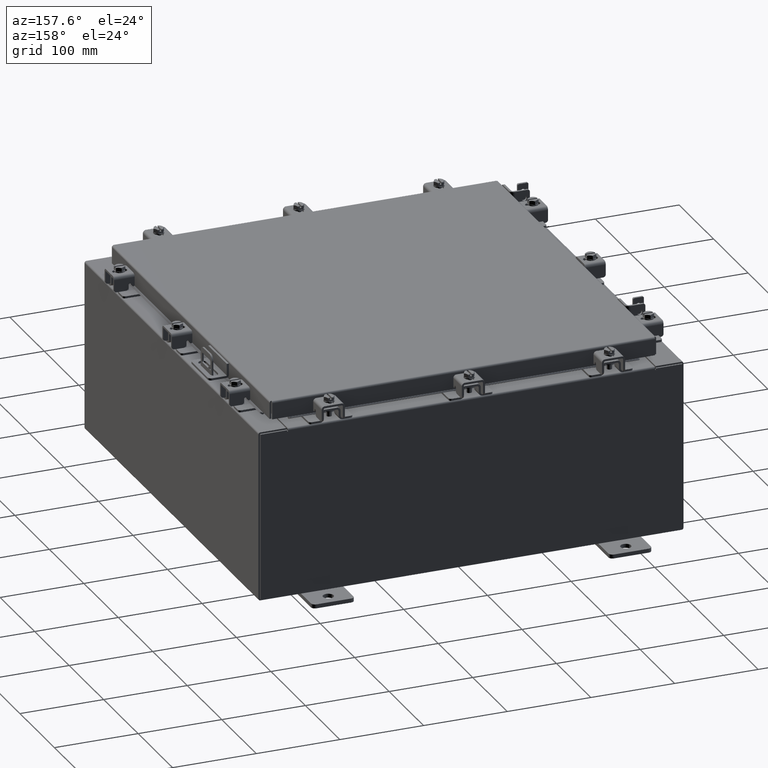
[diagram: clean part render]
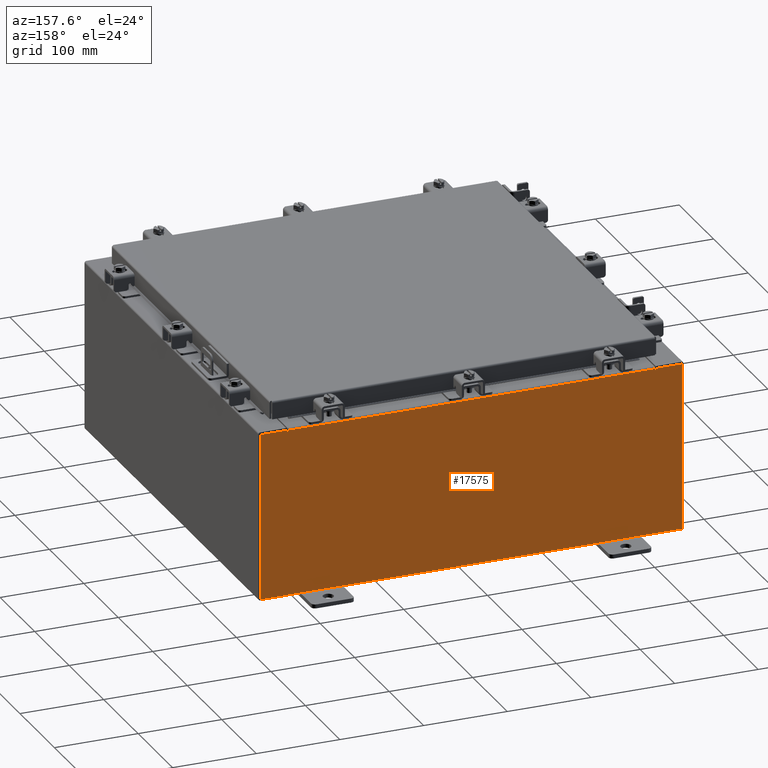
[diagram: same view with one face highlighted and labeled with its STEP entity id]
A machine part, auxiliary view. The second image highlights one B-rep face of the part: STEP entity #17575.
In plain terms, the highlighted planar face has unit normal (0, -1, 0).
Its self-contained STEP definition (entity closure, byte-faithful):
#50 = EDGE_CURVE ( 'NONE', #14432, #22506, #18340, .T. ) ;
#251 = FACE_OUTER_BOUND ( 'NONE', #4252, .T. ) ;
#548 = AXIS2_PLACEMENT_3D ( 'NONE', #9248, #4067, #16262 ) ;
#1050 = LINE ( 'NONE', #3271, #13907 ) ;
#1285 = DIRECTION ( 'NONE',  ( 1.000000000000000000, 0.0000000000000000000, 0.0000000000000000000 ) ) ;
#1331 = ORIENTED_EDGE ( 'NONE', *, *, #11438, .F. ) ;
#1709 = ORIENTED_EDGE ( 'NONE', *, *, #6913, .T. ) ;
#2180 = CIRCLE ( 'NONE', #19082, 0.01867500000000003900 ) ;
#2260 = CARTESIAN_POINT ( 'NONE',  ( -9.925300000000000000, 0.0000000000000000000, 3.925299999999999600 ) ) ;
#2336 = CARTESIAN_POINT ( 'NONE',  ( -8.674549999999996400, 0.0000000000000000000, 3.925299999999999600 ) ) ;
#2378 = ORIENTED_EDGE ( 'NONE', *, *, #5160, .F. ) ;
#2814 = CARTESIAN_POINT ( 'NONE',  ( -8.637199999999996400, 1.024442997624098700E-016, 3.912299999999999700 ) ) ;
#2852 = VECTOR ( 'NONE', #1285, 39.37007874015748100 ) ;
#3271 = CARTESIAN_POINT ( 'NONE',  ( 8.674549999999747700, -0.0000000000000000000, -5.647877341832665300E-013 ) ) ;
#3408 = LINE ( 'NONE', #4750, #2852 ) ;
#3712 = CARTESIAN_POINT ( 'NONE',  ( 8.637200000000000000, 0.0000000000000000000, 3.874949999999999700 ) ) ;
#3984 = CARTESIAN_POINT ( 'NONE',  ( 8.637200000000000000, 0.0000000000000000000, 3.912299999999999700 ) ) ;
#4067 = DIRECTION ( 'NONE',  ( 0.0000000000000000000, -1.000000000000000000, 0.0000000000000000000 ) ) ;
#4252 = EDGE_LOOP ( 'NONE', ( #10033, #5243, #2378, #1709, #10000, #1331, #11711, #22315, #13225, #21519, #21060, #7854 ) ) ;
#4337 = VECTOR ( 'NONE', #18155, 39.37007874015748100 ) ;
#4498 = VECTOR ( 'NONE', #12042, 39.37007874015748100 ) ;
#4675 = CARTESIAN_POINT ( 'NONE',  ( -8.674549999999996400, 0.0000000000000000000, 3.874949999999999700 ) ) ;
#4713 = EDGE_CURVE ( 'NONE', #22506, #11276, #14959, .T. ) ;
#4750 = CARTESIAN_POINT ( 'NONE',  ( -8.637200000000000000, 1.024442997624098700E-016, 3.912299999999999700 ) ) ;
#4877 = AXIS2_PLACEMENT_3D ( 'NONE', #9724, #21909, #11469 ) ;
#4886 = CARTESIAN_POINT ( 'NONE',  ( -8.674549999999996400, -0.0000000000000000000, 0.0000000000000000000 ) ) ;
#5160 = EDGE_CURVE ( 'NONE', #22520, #11161, #14936, .T. ) ;
#5243 = ORIENTED_EDGE ( 'NONE', *, *, #21339, .F. ) ;
#5338 = CARTESIAN_POINT ( 'NONE',  ( -9.925300000000000000, 0.0000000000000000000, 3.925299999999999600 ) ) ;
#5363 = CARTESIAN_POINT ( 'NONE',  ( 8.655875000000000000, 0.0000000000000000000, 3.874949999999999700 ) ) ;
#5385 = DIRECTION ( 'NONE',  ( -1.000000000000000000, -0.0000000000000000000, -0.0000000000000000000 ) ) ;
#5386 = DIRECTION ( 'NONE',  ( 0.0000000000000000000, 0.0000000000000000000, -1.000000000000000000 ) ) ;
#6117 = CARTESIAN_POINT ( 'NONE',  ( 8.674550000000001800, 0.0000000000000000000, 3.925299999999999600 ) ) ;
#6388 = CIRCLE ( 'NONE', #4877, 0.01867500000000003900 ) ;
#6913 = EDGE_CURVE ( 'NONE', #22520, #8769, #3408, .T. ) ;
#7106 = DIRECTION ( 'NONE',  ( 0.0000000000000000000, 0.0000000000000000000, -1.000000000000000000 ) ) ;
#7854 = ORIENTED_EDGE ( 'NONE', *, *, #18198, .T. ) ;
#8191 = EDGE_CURVE ( 'NONE', #21020, #8769, #13211, .T. ) ;
#8322 = CARTESIAN_POINT ( 'NONE',  ( 9.925300000000000000, 0.0000000000000000000, -3.925299999999999600 ) ) ;
#8769 = VERTEX_POINT ( 'NONE', #3984 ) ;
#8812 = EDGE_CURVE ( 'NONE', #11276, #11515, #12639, .T. ) ;
#8899 = LINE ( 'NONE', #16489, #21699 ) ;
#9248 = CARTESIAN_POINT ( 'NONE',  ( 0.0000000000000000000, 0.0000000000000000000, 0.0000000000000000000 ) ) ;
#9492 = DIRECTION ( 'NONE',  ( 0.0000000000000000000, 0.0000000000000000000, -1.000000000000000000 ) ) ;
#9535 = DIRECTION ( 'NONE',  ( -0.0000000000000000000, -0.0000000000000000000, 1.000000000000000000 ) ) ;
#9724 = CARTESIAN_POINT ( 'NONE',  ( -8.655874999999996400, 0.0000000000000000000, 3.874949999999999700 ) ) ;
#10000 = ORIENTED_EDGE ( 'NONE', *, *, #8191, .F. ) ;
#10033 = ORIENTED_EDGE ( 'NONE', *, *, #22146, .F. ) ;
#10590 = DIRECTION ( 'NONE',  ( 1.000000000000000000, 0.0000000000000000000, 0.0000000000000000000 ) ) ;
#11124 = VERTEX_POINT ( 'NONE', #18419 ) ;
#11161 = VERTEX_POINT ( 'NONE', #21972 ) ;
#11240 = CARTESIAN_POINT ( 'NONE',  ( 9.925300000000000000, 0.0000000000000000000, 3.925299999999999600 ) ) ;
#11276 = VERTEX_POINT ( 'NONE', #8322 ) ;
#11438 = EDGE_CURVE ( 'NONE', #11124, #21020, #2180, .T. ) ;
#11469 = DIRECTION ( 'NONE',  ( 0.0000000000000000000, 0.0000000000000000000, -1.000000000000000000 ) ) ;
#11515 = VERTEX_POINT ( 'NONE', #19437 ) ;
#11711 = ORIENTED_EDGE ( 'NONE', *, *, #12050, .F. ) ;
#12042 = DIRECTION ( 'NONE',  ( 0.0000000000000000000, 0.0000000000000000000, 1.000000000000000000 ) ) ;
#12050 = EDGE_CURVE ( 'NONE', #14432, #11124, #1050, .T. ) ;
#12122 = VECTOR ( 'NONE', #18755, 39.37007874015748100 ) ;
#12639 = LINE ( 'NONE', #15911, #21886 ) ;
#13211 = LINE ( 'NONE', #22460, #4498 ) ;
#13225 = ORIENTED_EDGE ( 'NONE', *, *, #4713, .T. ) ;
#13691 = VECTOR ( 'NONE', #10590, 39.37007874015748100 ) ;
#13865 = VECTOR ( 'NONE', #9492, 39.37007874015748100 ) ;
#13907 = VECTOR ( 'NONE', #15394, 39.37007874015748100 ) ;
#14405 = EDGE_CURVE ( 'NONE', #11515, #21102, #8899, .T. ) ;
#14432 = VERTEX_POINT ( 'NONE', #6117 ) ;
#14936 = LINE ( 'NONE', #17584, #20088 ) ;
#14959 = LINE ( 'NONE', #11240, #13865 ) ;
#15058 = VERTEX_POINT ( 'NONE', #2336 ) ;
#15394 = DIRECTION ( 'NONE',  ( -6.510859170600007400E-014, 0.0000000000000000000, -1.000000000000000000 ) ) ;
#15902 = VERTEX_POINT ( 'NONE', #4675 ) ;
#15911 = CARTESIAN_POINT ( 'NONE',  ( -9.925300000000000000, 0.0000000000000000000, -3.925299999999999600 ) ) ;
#16262 = DIRECTION ( 'NONE',  ( 0.0000000000000000000, -0.0000000000000000000, -1.000000000000000000 ) ) ;
#16475 = CARTESIAN_POINT ( 'NONE',  ( -9.925300000000000000, 0.0000000000000000000, 3.925299999999999600 ) ) ;
#16489 = CARTESIAN_POINT ( 'NONE',  ( -9.925300000000000000, 0.0000000000000000000, 3.925299999999999600 ) ) ;
#17555 = DIRECTION ( 'NONE',  ( -0.0000000000000000000, 1.000000000000000000, -0.0000000000000000000 ) ) ;
#17575 = ADVANCED_FACE ( 'NONE', ( #251 ), #21424, .F. ) ;
#17584 = CARTESIAN_POINT ( 'NONE',  ( -8.637199999999996400, -0.0000000000000000000, 0.0000000000000000000 ) ) ;
#18155 = DIRECTION ( 'NONE',  ( 1.000000000000000000, 0.0000000000000000000, 0.0000000000000000000 ) ) ;
#18198 = EDGE_CURVE ( 'NONE', #21102, #15058, #18252, .T. ) ;
#18252 = LINE ( 'NONE', #16475, #4337 ) ;
#18340 = LINE ( 'NONE', #5338, #13691 ) ;
#18419 = CARTESIAN_POINT ( 'NONE',  ( 8.674550000000000000, 0.0000000000000000000, 3.874949999999999700 ) ) ;
#18755 = DIRECTION ( 'NONE',  ( 0.0000000000000000000, 0.0000000000000000000, 1.000000000000000000 ) ) ;
#19082 = AXIS2_PLACEMENT_3D ( 'NONE', #5363, #17555, #7106 ) ;
#19437 = CARTESIAN_POINT ( 'NONE',  ( -9.925300000000000000, 0.0000000000000000000, -3.925299999999999600 ) ) ;
#20088 = VECTOR ( 'NONE', #5386, 39.37007874015748100 ) ;
#20101 = CARTESIAN_POINT ( 'NONE',  ( 9.925300000000000000, 0.0000000000000000000, 3.925299999999999600 ) ) ;
#20823 = LINE ( 'NONE', #4886, #12122 ) ;
#21020 = VERTEX_POINT ( 'NONE', #3712 ) ;
#21060 = ORIENTED_EDGE ( 'NONE', *, *, #14405, .T. ) ;
#21102 = VERTEX_POINT ( 'NONE', #2260 ) ;
#21339 = EDGE_CURVE ( 'NONE', #11161, #15902, #6388, .T. ) ;
#21424 = PLANE ( 'NONE',  #548 ) ;
#21519 = ORIENTED_EDGE ( 'NONE', *, *, #8812, .T. ) ;
#21699 = VECTOR ( 'NONE', #9535, 39.37007874015748100 ) ;
#21886 = VECTOR ( 'NONE', #5385, 39.37007874015748100 ) ;
#21909 = DIRECTION ( 'NONE',  ( -0.0000000000000000000, 1.000000000000000000, -0.0000000000000000000 ) ) ;
#21972 = CARTESIAN_POINT ( 'NONE',  ( -8.637199999999996400, -0.0000000000000000000, 3.874949999999999700 ) ) ;
#22146 = EDGE_CURVE ( 'NONE', #15902, #15058, #20823, .T. ) ;
#22315 = ORIENTED_EDGE ( 'NONE', *, *, #50, .T. ) ;
#22460 = CARTESIAN_POINT ( 'NONE',  ( 8.637200000000000000, 0.0000000000000000000, 0.0000000000000000000 ) ) ;
#22506 = VERTEX_POINT ( 'NONE', #20101 ) ;
#22520 = VERTEX_POINT ( 'NONE', #2814 ) ;